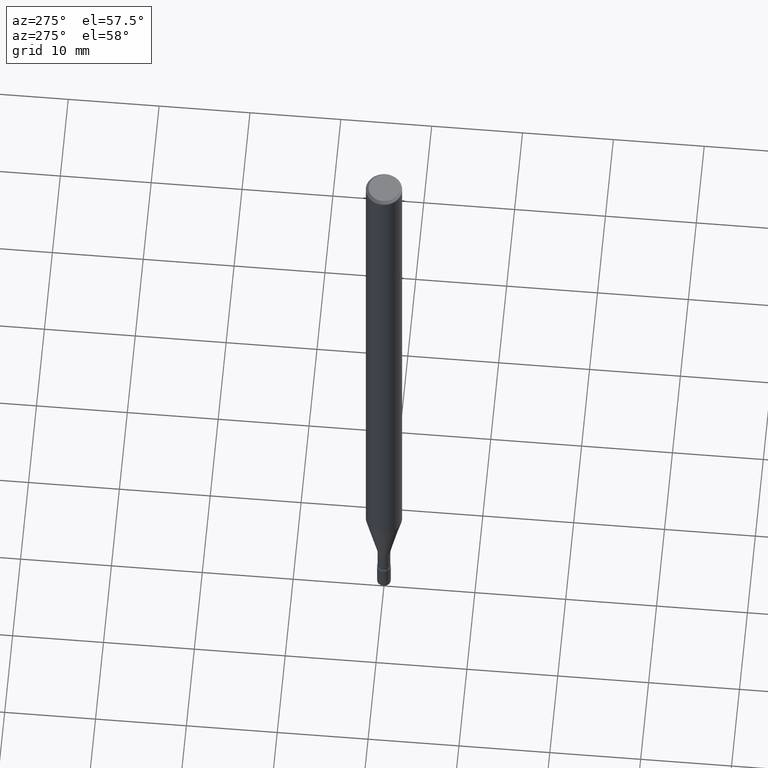
[diagram: clean part render]
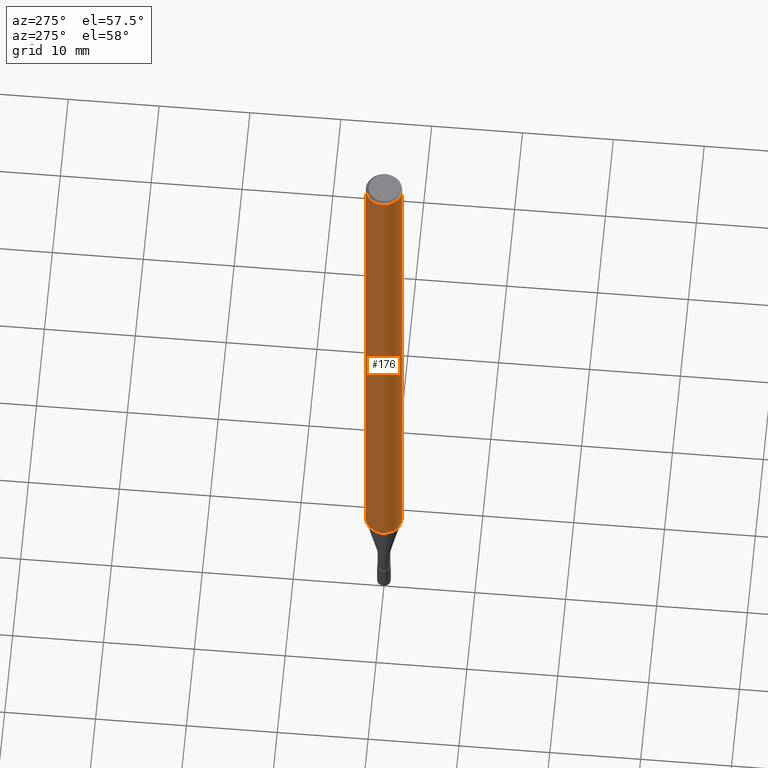
[diagram: same view with one face highlighted and labeled with its STEP entity id]
A machine part, auxiliary view. The second image highlights one B-rep face of the part: STEP entity #176.
In plain terms, the highlighted cylindrical surface (edge-blend (fillet) strip) has radius 2 mm, axis along (-0, -0, 1).
Its self-contained STEP definition (entity closure, byte-faithful):
#94=EDGE_CURVE('',#120,#158,#231,.T.);
#120=VERTEX_POINT('',#260);
#126=EDGE_CURVE('',#130,#158,#266,.T.);
#130=VERTEX_POINT('',#270);
#134=EDGE_CURVE('',#164,#120,#274,.T.);
#138=EDGE_CURVE('',#130,#164,#279,.T.);
#158=VERTEX_POINT('',#300);
#164=VERTEX_POINT('',#306);
#176=ADVANCED_FACE('',(#321),#322,.T.);
#231=LINE('',#377,#378);
#260=CARTESIAN_POINT('',(0.0,2.0,-0.299999999999997));
#266=CIRCLE('',#425,2.0);
#270=CARTESIAN_POINT('',(2.44921270764475E-016,-2.0,-67.312));
#274=CIRCLE('',#435,2.0);
#279=LINE('',#441,#442);
#300=CARTESIAN_POINT('',(0.0,2.0,-67.312));
#306=CARTESIAN_POINT('',(2.44921270764475E-016,-2.0,-0.299999999999997));
#321=FACE_OUTER_BOUND('',#496,.T.);
#322=CYLINDRICAL_SURFACE('',#497,2.0);
#377=CARTESIAN_POINT('',(-2.44921270764475E-016,2.0,-33.806));
#378=VECTOR('',#542,1.0);
#425=AXIS2_PLACEMENT_3D('',#588,#589,#590);
#435=AXIS2_PLACEMENT_3D('',#594,#595,#596);
#441=CARTESIAN_POINT('',(2.44921270764475E-016,-2.0,-33.806));
#442=VECTOR('',#605,1.0);
#496=EDGE_LOOP('',(#645,#646,#647,#648));
#497=AXIS2_PLACEMENT_3D('',#649,#650,#651);
#542=DIRECTION('',(0.0,0.0,-1.0));
#588=CARTESIAN_POINT('',(0.0,0.0,-67.312));
#589=DIRECTION('',(0.0,0.0,-1.0));
#590=DIRECTION('',(0.0,1.0,0.0));
#594=CARTESIAN_POINT('',(0.0,0.0,-0.299999999999997));
#595=DIRECTION('',(0.0,0.0,-1.0));
#596=DIRECTION('',(0.0,1.0,0.0));
#605=DIRECTION('',(-0.0,-0.0,1.0));
#645=ORIENTED_EDGE('',*,*,#94,.T.);
#646=ORIENTED_EDGE('',*,*,#126,.F.);
#647=ORIENTED_EDGE('',*,*,#138,.T.);
#648=ORIENTED_EDGE('',*,*,#134,.T.);
#649=CARTESIAN_POINT('',(0.0,0.0,-33.806));
#650=DIRECTION('',(-0.0,-0.0,1.0));
#651=DIRECTION('',(0.0,1.0,0.0));